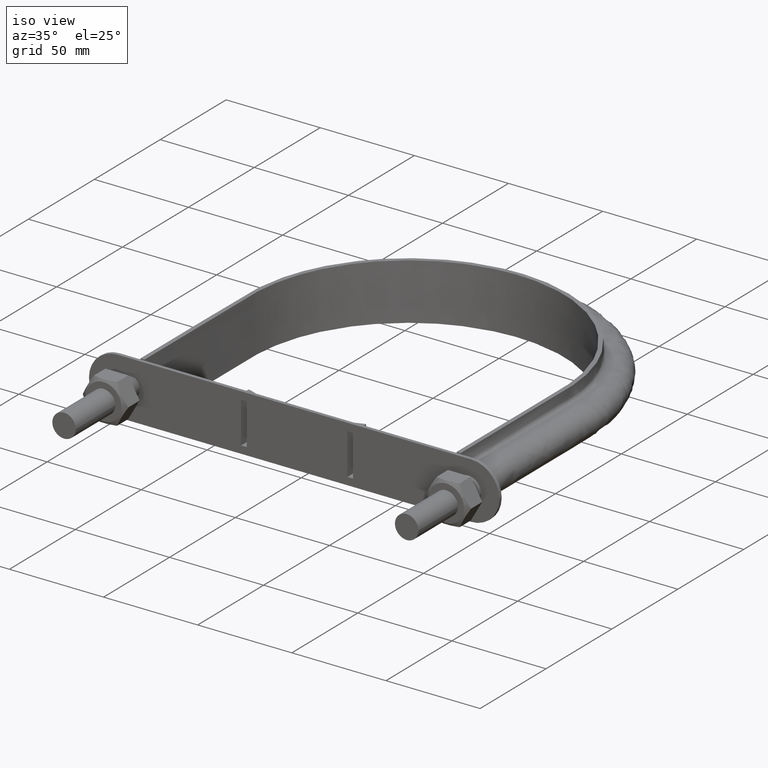
[diagram: clean part render]
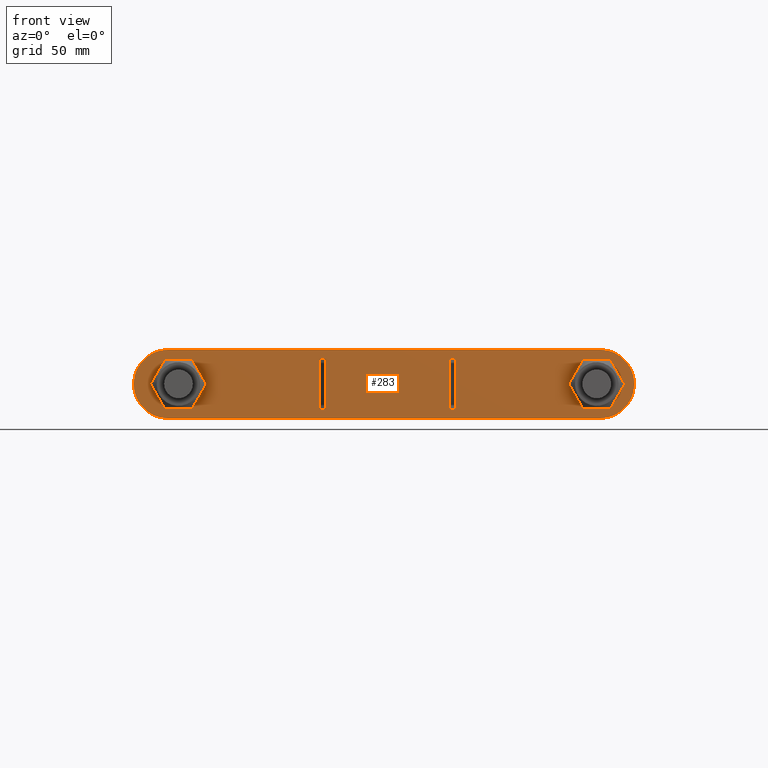
[diagram: tour spotlight — one face highlighted and labeled with its STEP entity id]
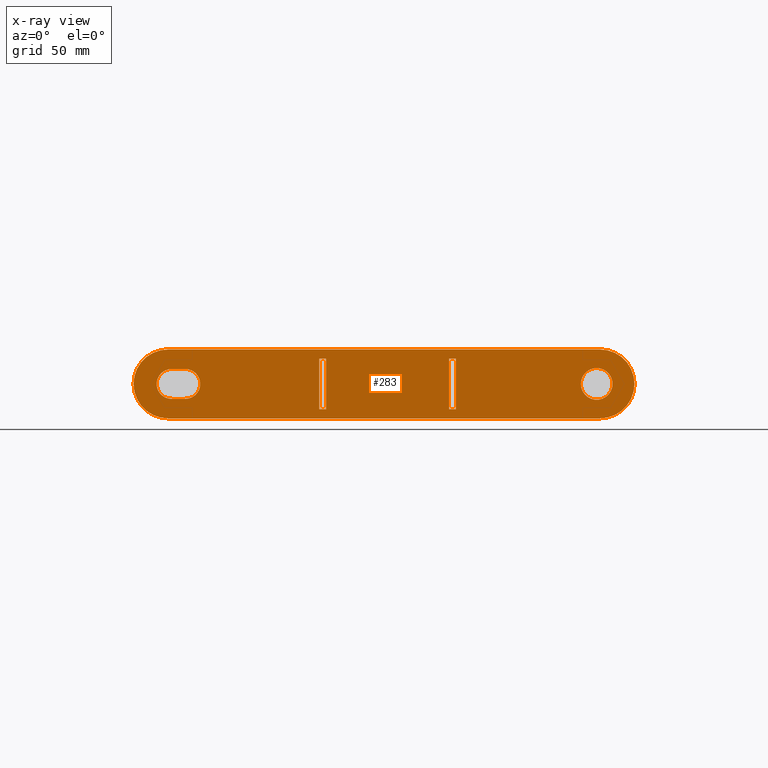
[diagram: x-ray of the same camera — body ghosted, this tour face saturated]
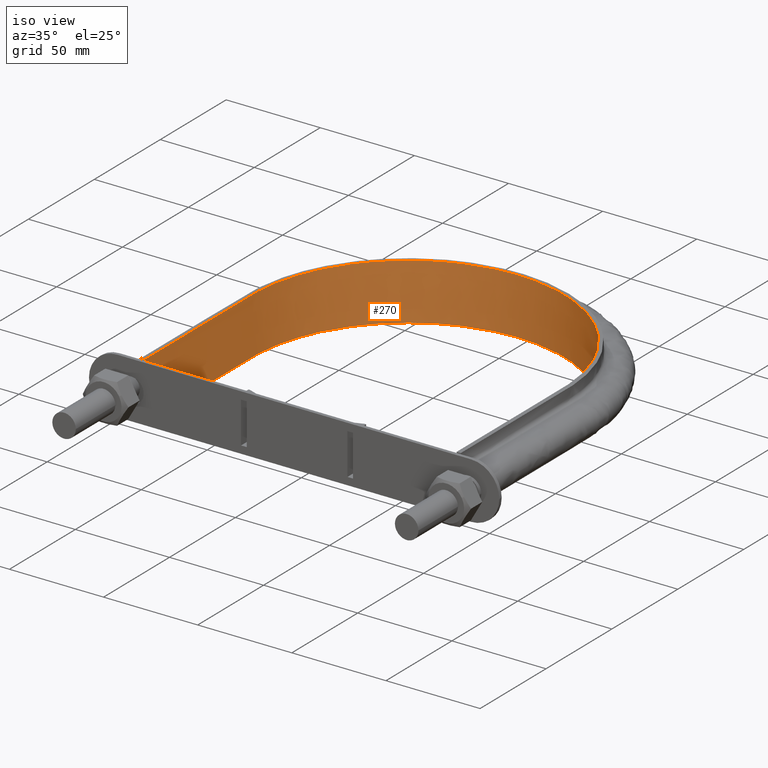
[diagram: tour spotlight — one face highlighted and labeled with its STEP entity id]
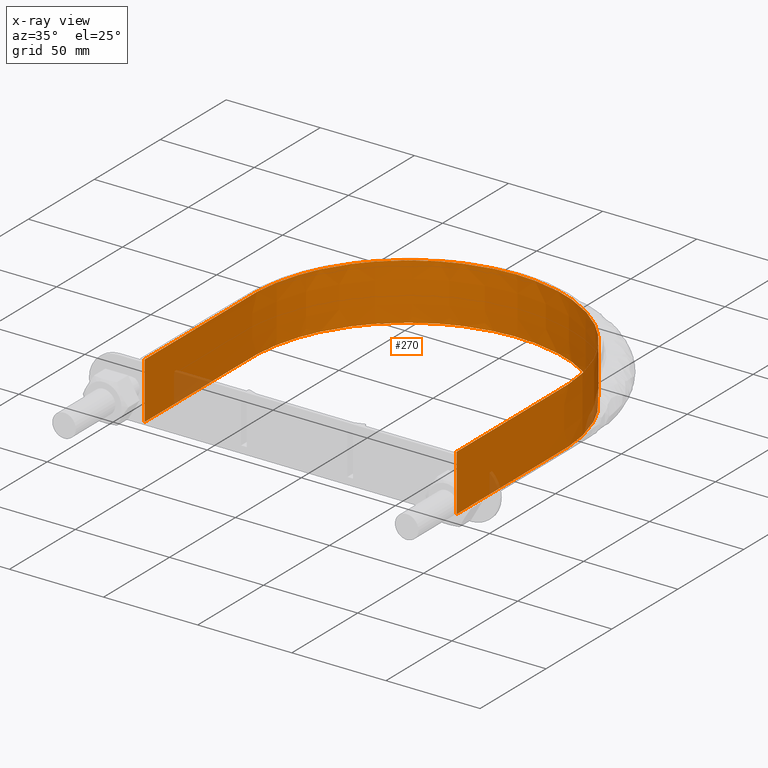
[diagram: x-ray of the same camera — body ghosted, this tour face saturated]
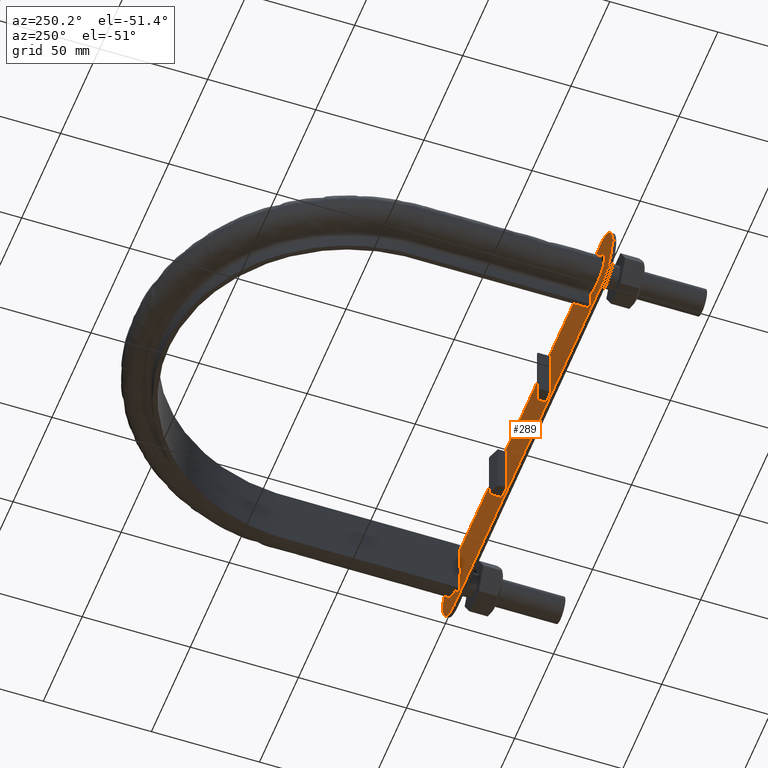
[diagram: tour spotlight — one face highlighted and labeled with its STEP entity id]
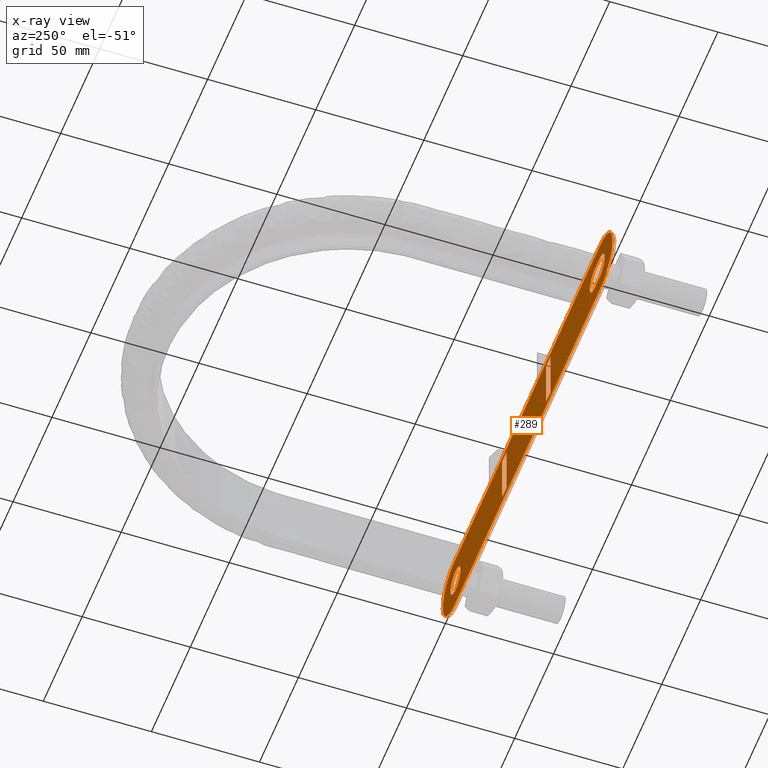
[diagram: x-ray of the same camera — body ghosted, this tour face saturated]
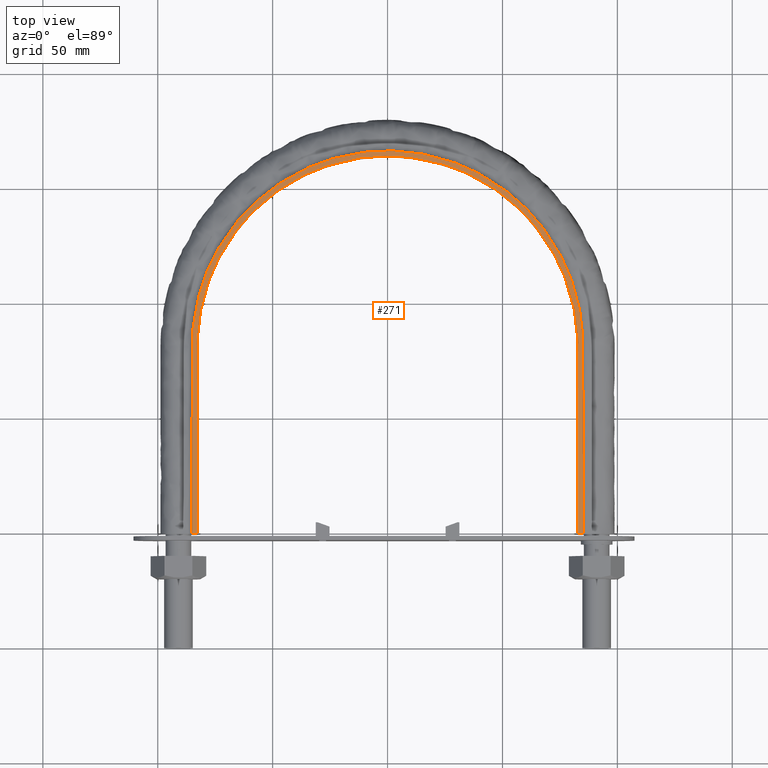
[diagram: tour spotlight — one face highlighted and labeled with its STEP entity id]
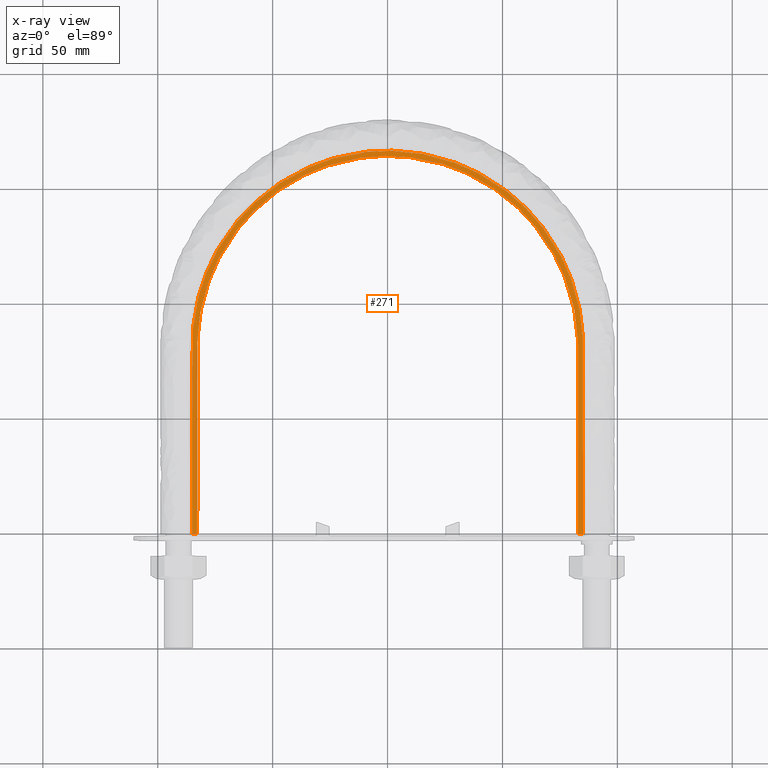
[diagram: x-ray of the same camera — body ghosted, this tour face saturated]
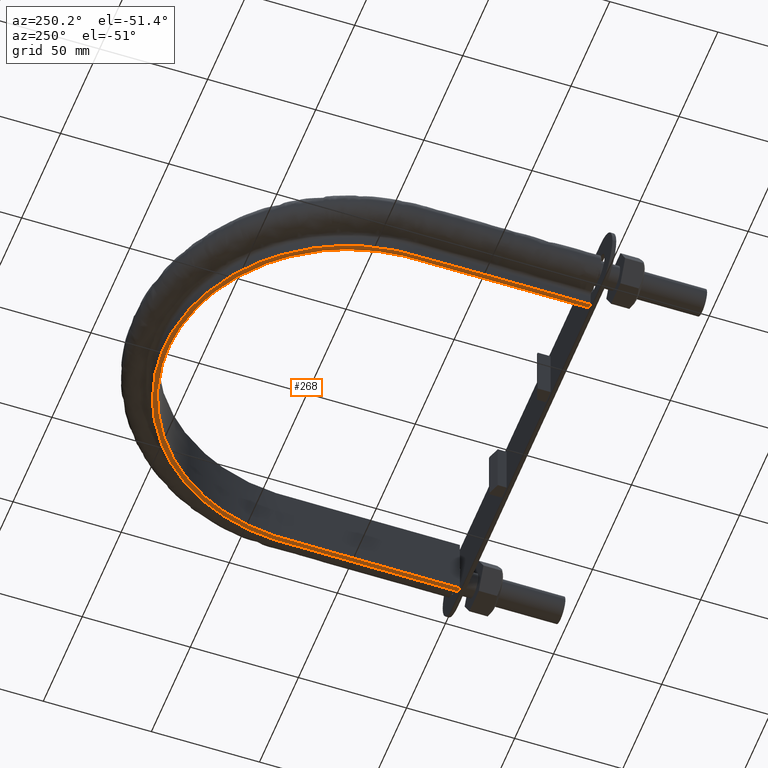
[diagram: tour spotlight — one face highlighted and labeled with its STEP entity id]
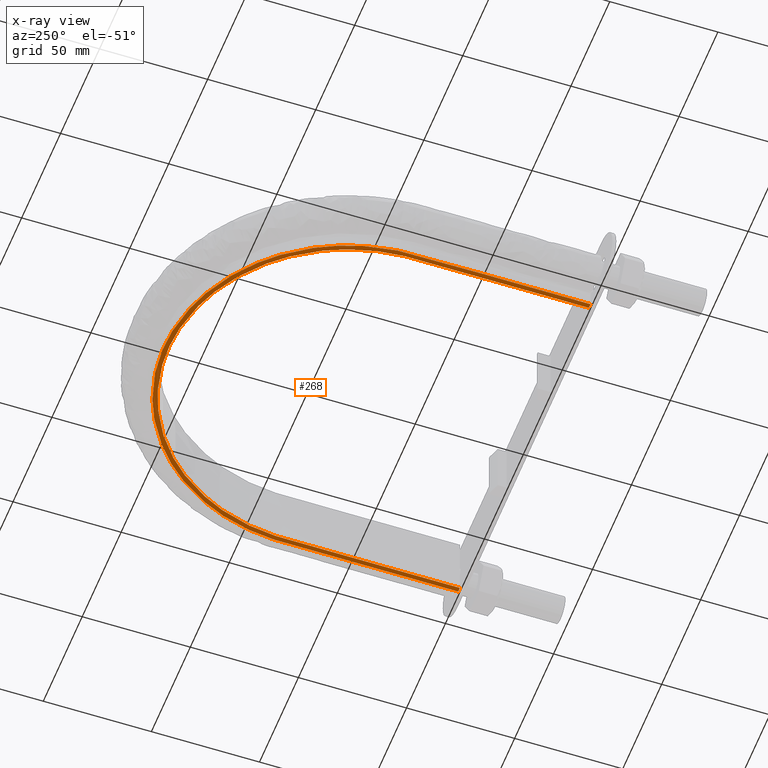
[diagram: x-ray of the same camera — body ghosted, this tour face saturated]
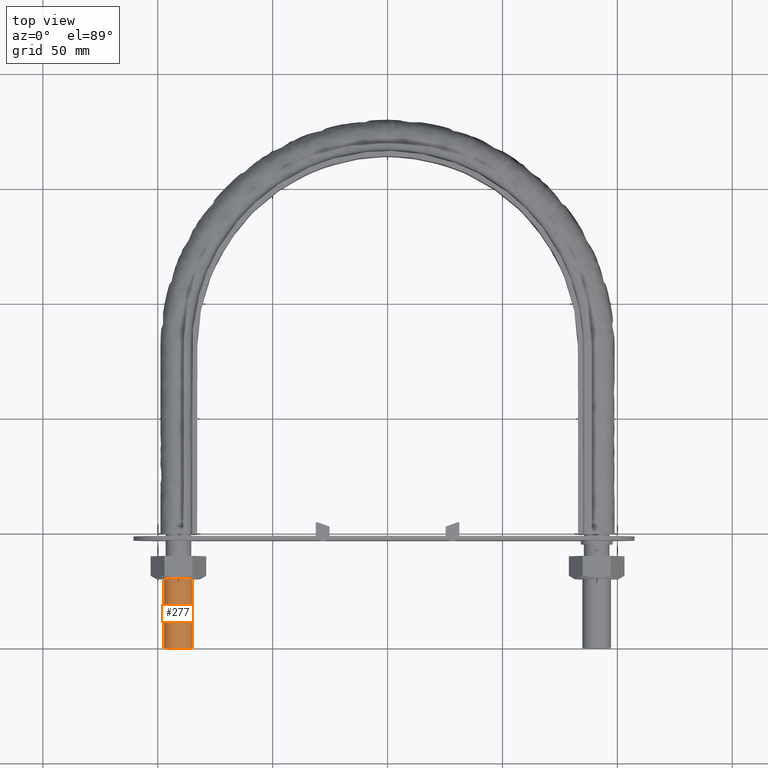
[diagram: tour spotlight — one face highlighted and labeled with its STEP entity id]
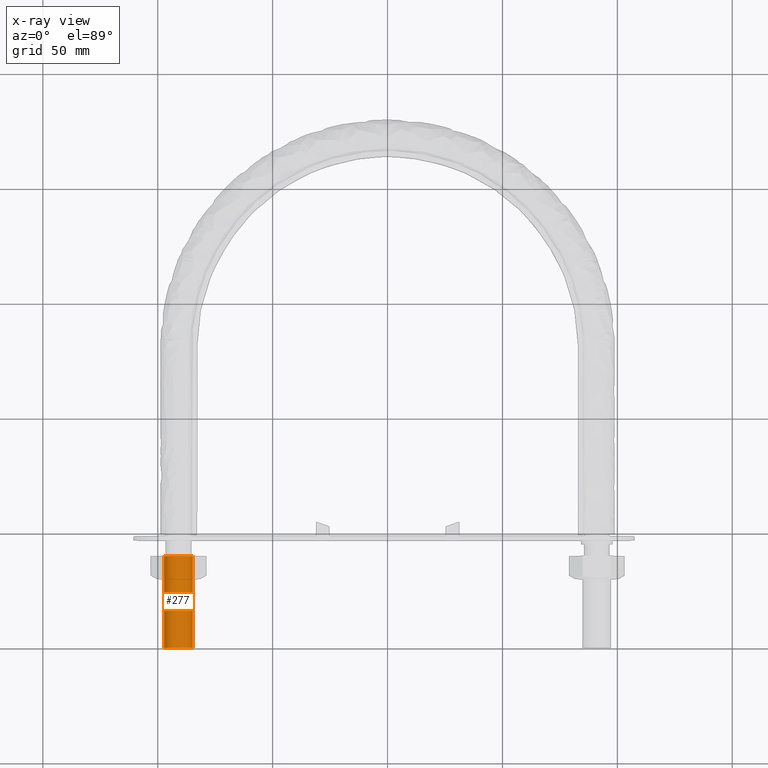
[diagram: x-ray of the same camera — body ghosted, this tour face saturated]
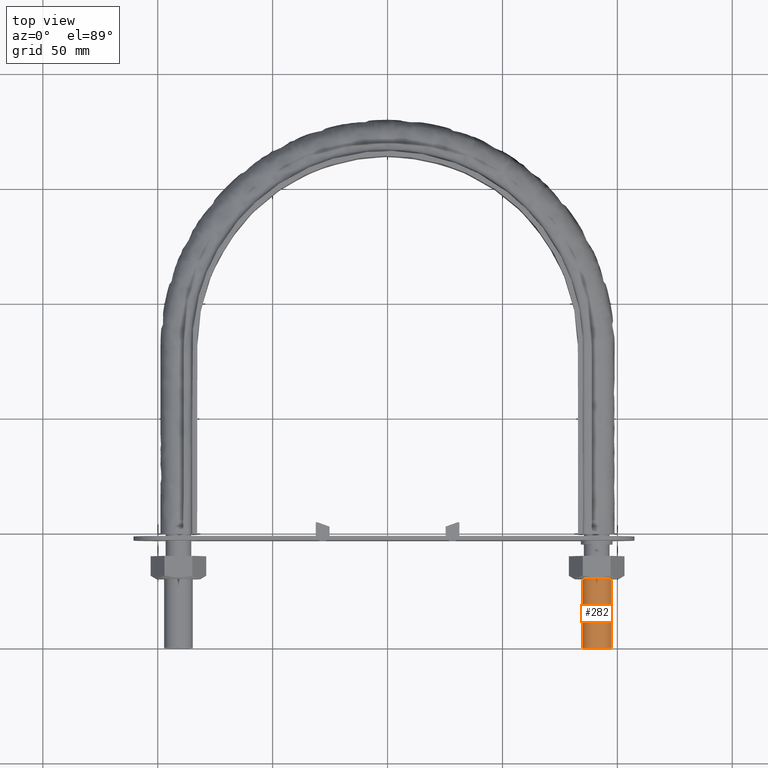
[diagram: tour spotlight — one face highlighted and labeled with its STEP entity id]
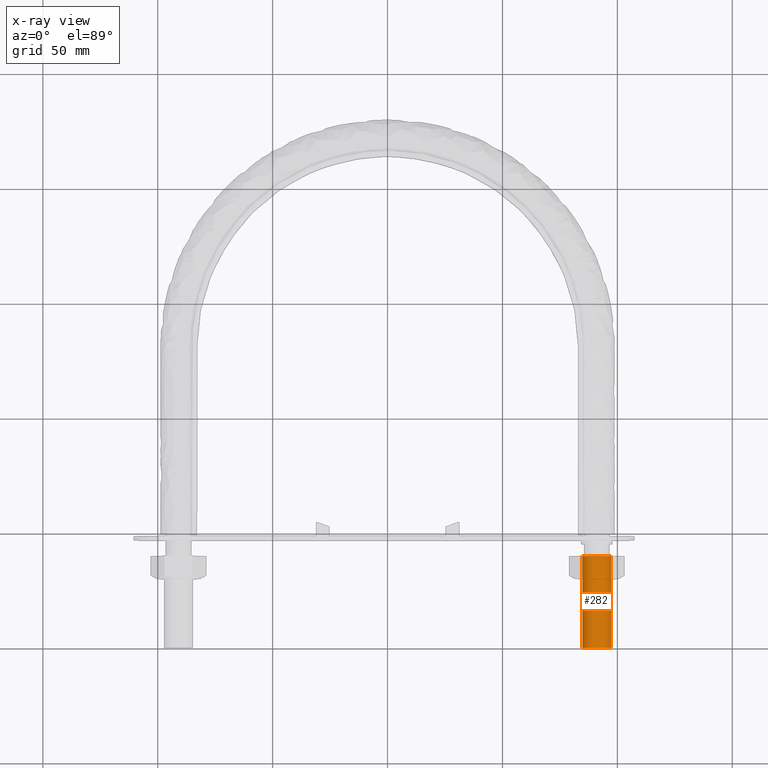
[diagram: x-ray of the same camera — body ghosted, this tour face saturated]
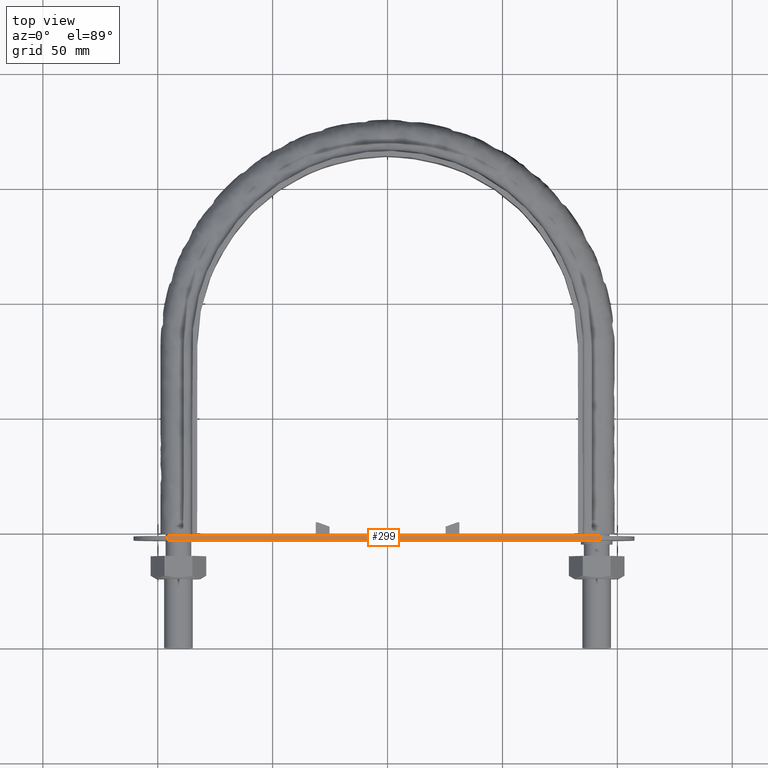
[diagram: tour spotlight — one face highlighted and labeled with its STEP entity id]
A machine part: a face-by-face anatomy tour. The part has 77 B-rep faces; the first image is the clean iso view, then the 8 largest visible faces are spotlighted one at a time (largest first), each with its STEP entity span.

Face 1 — front view, entity #283. An x-ray twin of the same camera follows (body ghosted, this face saturated) — the face is partly hidden behind the body. In plain terms, the highlighted planar face has unit normal (0, 1, 0).
Definition (entity closure, byte-faithful):
#283 = ADVANCED_FACE( '', ( #387, #388, #389, #390, #391 ), #392, .F. );
#387 = FACE_BOUND( '', #1473, .T. );
#388 = FACE_OUTER_BOUND( '', #1474, .T. );
#389 = FACE_BOUND( '', #1475, .T. );
#390 = FACE_BOUND( '', #1476, .T. );
#391 = FACE_BOUND( '', #1477, .T. );
#392 = PLANE( '', #1478 );
#1473 = EDGE_LOOP( '', ( #1744, #1745, #1746, #1747 ) );
#1474 = EDGE_LOOP( '', ( #1748, #1749, #1750, #1751, #1752, #1753 ) );
#1475 = EDGE_LOOP( '', ( #1754 ) );
#1476 = EDGE_LOOP( '', ( #1755, #1756, #1757, #1758 ) );
#1477 = EDGE_LOOP( '', ( #1759, #1760, #1761, #1762 ) );
#1478 = AXIS2_PLACEMENT_3D( '', #1763, #1764, #1765 );
#1744 = ORIENTED_EDGE( '', *, *, #2231, .F. );
#1745 = ORIENTED_EDGE( '', *, *, #2232, .T. );
#1746 = ORIENTED_EDGE( '', *, *, #2233, .T. );
#1747 = ORIENTED_EDGE( '', *, *, #2234, .F. );
#1748 = ORIENTED_EDGE( '', *, *, #2235, .F. );
#1749 = ORIENTED_EDGE( '', *, *, #2236, .F. );
#1750 = ORIENTED_EDGE( '', *, *, #2237, .F. );
#1751 = ORIENTED_EDGE( '', *, *, #2238, .F. );
#1752 = ORIENTED_EDGE( '', *, *, #2239, .F. );
#1753 = ORIENTED_EDGE( '', *, *, #2240, .F. );
#1754 = ORIENTED_EDGE( '', *, *, #2241, .T. );
#1755 = ORIENTED_EDGE( '', *, *, #2242, .F. );
#1756 = ORIENTED_EDGE( '', *, *, #2243, .F. );
#1757 = ORIENTED_EDGE( '', *, *, #2244, .F. );
#1758 = ORIENTED_EDGE( '', *, *, #2245, .F. );
#1759 = ORIENTED_EDGE( '', *, *, #2246, .T. );
#1760 = ORIENTED_EDGE( '', *, *, #2247, .T. );
#1761 = ORIENTED_EDGE( '', *, *, #2248, .F. );
#1762 = ORIENTED_EDGE( '', *, *, #2249, .F. );
#1763 = CARTESIAN_POINT( '', ( -95.5500000000000, 46.8000000000003, 7.48946739754173E-010 ) );
#1764 = DIRECTION( '', ( 2.44484870126044E-016, 1.00000000000000, 5.38325119430397E-017 ) );
#1765 = DIRECTION( '', ( 7.83837578177664E-012, -5.38325119449561E-017, 1.00000000000000 ) );
#2231 = EDGE_CURVE( '', #2433, #2434, #2435, .T. );
#2232 = EDGE_CURVE( '', #2433, #2436, #2437, .T. );
#2233 = EDGE_CURVE( '', #2436, #2438, #2439, .T. );
#2234 = EDGE_CURVE( '', #2434, #2438, #2440, .T. );
#2235 = EDGE_CURVE( '', #2441, #2442, #2443, .T. );
#2236 = EDGE_CURVE( '', #2444, #2441, #2445, .T. );
#2237 = EDGE_CURVE( '', #2446, #2444, #2447, .T. );
#2238 = EDGE_CURVE( '', #2448, #2446, #2449, .T. );
#2239 = EDGE_CURVE( '', #2450, #2448, #2451, .T. );
#2240 = EDGE_CURVE( '', #2442, #2450, #2452, .T. );
#2241 = EDGE_CURVE( '', #2453, #2453, #2454, .T. );
#2242 = EDGE_CURVE( '', #2455, #2456, #2457, .T. );
#2243 = EDGE_CURVE( '', #2458, #2455, #2459, .T. );
#2244 = EDGE_CURVE( '', #2460, #2458, #2461, .T. );
#2245 = EDGE_CURVE( '', #2456, #2460, #2462, .T. );
#2246 = EDGE_CURVE( '', #2463, #2464, #2465, .T. );
#2247 = EDGE_CURVE( '', #2464, #2466, #2467, .T. );
#2248 = EDGE_CURVE( '', #2468, #2466, #2469, .T. );
#2249 = EDGE_CURVE( '', #2463, #2468, #2470, .T. );
#2433 = VERTEX_POINT( '', #2927 );
#2434 = VERTEX_POINT( '', #2928 );
#2435 = LINE( '', #2929, #2930 );
#2436 = VERTEX_POINT( '', #2931 );
#2437 = LINE( '', #2932, #2933 );
#2438 = VERTEX_POINT( '', #2934 );
#2439 = LINE( '', #2935, #2936 );
#2440 = LINE( '', #2937, #2938 );
#2441 = VERTEX_POINT( '', #2939 );
#2442 = VERTEX_POINT( '', #2940 );
#2443 = CIRCLE( '', #2941, 15.0000000000000 );
#2444 = VERTEX_POINT( '', #2942 );
#2445 = CIRCLE( '', #2943, 15.0000000000000 );
#2446 = VERTEX_POINT( '', #2944 );
#2447 = LINE( '', #2945, #2946 );
#2448 = VERTEX_POINT( '', #2947 );
#2449 = CIRCLE( '', #2948, 15.0000000000000 );
#2450 = VERTEX_POINT( '', #2949 );
#2451 = CIRCLE( '', #2950, 15.0000000000000 );
#2452 = LINE( '', #2951, #2952 );
#2453 = VERTEX_POINT( '', #2953 );
#2454 = CIRCLE( '', #2954, 6.90000000000000 );
#2455 = VERTEX_POINT( '', #2955 );
#2456 = VERTEX_POINT( '', #2956 );
#2457 = CIRCLE( '', #2957, 6.50000000000000 );
#2458 = VERTEX_POINT( '', #2958 );
#2459 = LINE( '', #2959, #2960 );
#2460 = VERTEX_POINT( '', #2961 );
#2461 = CIRCLE( '', #2962, 6.50000000000000 );
#2462 = LINE( '', #2963, #2964 );
#2463 = VERTEX_POINT( '', #2965 );
#2464 = VERTEX_POINT( '', #2966 );
#2465 = LINE( '', #2967, #2968 );
#2466 = VERTEX_POINT( '', #2969 );
#2467 = LINE( '', #2970, #2971 );
#2468 = VERTEX_POINT( '', #2972 );
#2469 = LINE( '', #2973, #2974 );
#2470 = LINE( '', #2975, #2976 );
#2927 = CARTESIAN_POINT( '', ( -29.7500000000862, 46.8000000000003, -10.9999999997668 ) );
#2928 = CARTESIAN_POINT( '', ( -26.7500000000862, 46.8000000000003, -10.9999999997903 ) );
#2929 = CARTESIAN_POINT( '', ( -29.7500000000862, 46.8000000000003, -10.9999999997668 ) );
#2930 = VECTOR( '', #3407, 1000.00000000000 );
#2931 = CARTESIAN_POINT( '', ( -29.7499999999138, 46.8000000000003, 11.0000000002332 ) );
#2932 = CARTESIAN_POINT( '', ( -29.7500000000862, 46.8000000000003, -10.9999999997668 ) );
#2933 = VECTOR( '', #3408, 1000.00000000000 );
#2934 = CARTESIAN_POINT( '', ( -26.7499999999138, 46.8000000000003, 11.0000000002097 ) );
#2935 = CARTESIAN_POINT( '', ( -29.7499999999138, 46.8000000000003, 11.0000000002332 ) );
#2936 = VECTOR( '', #3409, 1000.00000000000 );
#2937 = CARTESIAN_POINT( '', ( -26.7500000000862, 46.8000000000003, -10.9999999997903 ) );
#2938 = VECTOR( '', #3410, 1000.00000000000 );
#2939 = CARTESIAN_POINT( '', ( -110.550000000000, 46.8000000000003, 8.66537988992106E-010 ) );
#2940 = CARTESIAN_POINT( '', ( -95.5499999998825, 46.8000000000003, 15.0000000007489 ) );
#2941 = AXIS2_PLACEMENT_3D( '', #3411, #3412, #3413 );
#2942 = CARTESIAN_POINT( '', ( -95.5500000001176, 46.8000000000003, -14.9999999992510 ) );
#2943 = AXIS2_PLACEMENT_3D( '', #3414, #3415, #3416 );
#2944 = CARTESIAN_POINT( '', ( 92.4499999998824, 46.8000000000003, -15.0000000007246 ) );
#2945 = CARTESIAN_POINT( '', ( 92.4499999998824, 46.8000000000003, -15.0000000007247 ) );
#2946 = VECTOR( '', #3417, 1000.00000000000 );
#2947 = CARTESIAN_POINT( '', ( 107.450000000000, 46.8000000000003, -8.42241809223009E-010 ) );
#2948 = AXIS2_PLACEMENT_3D( '', #3418, #3419, #3420 );
#2949 = CARTESIAN_POINT( '', ( 92.4500000001176, 46.8000000000003, 14.9999999992753 ) );
#2950 = AXIS2_PLACEMENT_3D( '', #3421, #3422, #3423 );
#2951 = CARTESIAN_POINT( '', ( -95.5499999998825, 46.8000000000003, 15.0000000007489 ) );
#2952 = VECTOR( '', #3424, 1000.00000000000 );
#2953 = CARTESIAN_POINT( '', ( 97.9000000000000, 46.8000000000003, -7.67385320507042E-010 ) );
#2954 = AXIS2_PLACEMENT_3D( '', #3425, #3426, #3427 );
#2955 = CARTESIAN_POINT( '', ( -93.9999999999491, 46.7999982000074, 6.50000000073679 ) );
#2956 = CARTESIAN_POINT( '', ( -94.0000000000510, 46.7999982000074, -6.49999999926320 ) );
#2957 = AXIS2_PLACEMENT_3D( '', #3428, #3429, #3430 );
#2958 = CARTESIAN_POINT( '', ( -87.9999999999491, 46.7999982000074, 6.50000000068976 ) );
#2959 = CARTESIAN_POINT( '', ( -87.9999999999491, 46.7999982000074, 6.50000000068976 ) );
#2960 = VECTOR( '', #3431, 1000.00000000000 );
#2961 = CARTESIAN_POINT( '', ( -88.0000000000510, 46.7999982000074, -6.49999999931023 ) );
#2962 = AXIS2_PLACEMENT_3D( '', #3432, #3433, #3434 );
#2963 = CARTESIAN_POINT( '', ( -94.0000000000510, 46.7999982000074, -6.49999999926320 ) );
#2964 = VECTOR( '', #3435, 1000.00000000000 );
#2965 = CARTESIAN_POINT( '', ( 29.7499999999137, 46.8000000000003, -11.0000000002332 ) );
#2966 = CARTESIAN_POINT( '', ( 26.7499999999137, 46.8000000000003, -11.0000000002097 ) );
#2967 = CARTESIAN_POINT( '', ( 29.7499999999137, 46.8000000000003, -11.0000000002332 ) );
#2968 = VECTOR( '', #3436, 1000.00000000000 );
#2969 = CARTESIAN_POINT( '', ( 26.7500000000862, 46.8000000000003, 10.9999999997903 ) );
#2970 = CARTESIAN_POINT( '', ( 26.7499999999137, 46.8000000000003, -11.0000000002097 ) );
#2971 = VECTOR( '', #3437, 1000.00000000000 );
#2972 = CARTESIAN_POINT( '', ( 29.7500000000862, 46.8000000000003, 10.9999999997668 ) );
#2973 = CARTESIAN_POINT( '', ( 29.7500000000862, 46.8000000000003, 10.9999999997668 ) );
#2974 = VECTOR( '', #3438, 1000.00000000000 );
#2975 = CARTESIAN_POINT( '', ( 29.7499999999137, 46.8000000000003, -11.0000000002332 ) );
#2976 = VECTOR( '', #3439, 1000.00000000000 );
#3407 = DIRECTION( '', ( 1.00000000000000, -3.05922993233134E-016, -7.83837578177664E-012 ) );
#3408 = DIRECTION( '', ( 7.83811591570821E-012, 1.06919704269028E-016, 1.00000000000000 ) );
#3409 = DIRECTION( '', ( 1.00000000000000, -3.05922993233134E-016, -7.83837578177664E-012 ) );
#3410 = DIRECTION( '', ( 7.83811591570821E-012, 1.06919704269028E-016, 1.00000000000000 ) );
#3411 = CARTESIAN_POINT( '', ( -95.5500000000000, 46.8000000000003, 7.48946739754173E-010 ) );
#3412 = DIRECTION( '', ( 2.44484870126044E-016, 1.00000000000000, 5.38325119430397E-017 ) );
#3413 = DIRECTION( '', ( -1.00000000000000, 2.44484870125622E-016, 7.83837578177664E-012 ) );
#3414 = CARTESIAN_POINT( '', ( -95.5500000000001, 46.8000000000003, 7.48964086988933E-010 ) );
#3415 = DIRECTION( '', ( 2.44484870126044E-016, 1.00000000000000, 5.38325119430397E-017 ) );
#3416 = DIRECTION( '', ( -7.83837578177664E-012, 5.38325119449561E-017, -1.00000000000000 ) );
#3417 = DIRECTION( '', ( -1.00000000000000, 2.44484870125622E-016, 7.83837578177664E-012 ) );
#3418 = CARTESIAN_POINT( '', ( 92.4500000000000, 46.8000000000003, -7.24650559985076E-010 ) );
#3419 = DIRECTION( '', ( 2.44484870126044E-016, 1.00000000000000, 5.38325119430397E-017 ) );
#3420 = DIRECTION( '', ( 1.00000000000000, -2.44484870125622E-016, -7.83837578177664E-012 ) );
#3421 = CARTESIAN_POINT( '', ( 92.4500000000000, 46.8000000000003, -7.24667907219836E-010 ) );
#3422 = DIRECTION( '', ( 2.44484870126044E-016, 1.00000000000000, 5.38325119430397E-017 ) );
#3423 = DIRECTION( '', ( 7.83837578177664E-012, -5.38325119449561E-017, 1.00000000000000 ) );
#3424 = DIRECTION( '', ( 1.00000000000000, -2.44484870125622E-016, -7.83837578177664E-012 ) );
#3425 = CARTESIAN_POINT( '', ( 91.0000000000000, 46.8000000000003, -7.13300527612784E-010 ) );
#3426 = DIRECTION( '', ( 2.44484870126044E-016, 1.00000000000000, 5.38325119430397E-017 ) );
#3427 = DIRECTION( '', ( 1.00000000000000, -2.44484870125622E-016, -7.83837578177664E-012 ) );
#3428 = CARTESIAN_POINT( '', ( -94.0000000000000, 46.7999982000074, 7.36795522568846E-010 ) );
#3429 = DIRECTION( '', ( -2.44484870126044E-016, -1.00000000000000, -5.38325119430397E-017 ) );
#3430 = DIRECTION( '', ( 7.83837578177664E-012, -5.38325119449561E-017, 1.00000000000000 ) );
#3431 = DIRECTION( '', ( -1.00000000000000, 2.44484870125622E-016, 7.83837578177664E-012 ) );
#3432 = CARTESIAN_POINT( '', ( -88.0000000000001, 46.7999982000074, 6.89765267878187E-010 ) );
#3433 = DIRECTION( '', ( -2.44484870126044E-016, -1.00000000000000, -5.38325119430397E-017 ) );
#3434 = DIRECTION( '', ( -7.83837578177664E-012, 5.38325119449561E-017, -1.00000000000000 ) );
#3435 = DIRECTION( '', ( 1.00000000000000, -2.44484870125622E-016, -7.83837578177664E-012 ) );
#3436 = DIRECTION( '', ( -1.00000000000000, 3.05507382400347E-016, 7.83837578177664E-012 ) );
#3437 = DIRECTION( '', ( 7.83863564784507E-012, 1.06919704269028E-016, 1.00000000000000 ) );
#3438 = DIRECTION( '', ( -1.00000000000000, 3.05507382400347E-016, 7.83837578177664E-012 ) );
#3439 = DIRECTION( '', ( 7.83863564784507E-012, 1.06919704269028E-016, 1.00000000000000 ) );

Face 2 — iso view, entity #270. An x-ray twin of the same camera follows (body ghosted, this face saturated) — the face is partly hidden behind the body. In plain terms, the highlighted face is a SurfaceOfExtrusion surface.
Definition (entity closure, byte-faithful):
#270 = ADVANCED_FACE( '', ( #353 ), #354, .T. );
#353 = FACE_OUTER_BOUND( '', #540, .T. );
#354 = SURFACE_OF_LINEAR_EXTRUSION( '', #541, #542 );
#540 = EDGE_LOOP( '', ( #1641, #1642, #1643, #1644 ) );
#541 = B_SPLINE_CURVE_WITH_KNOTS( '', 3, ( #1645, #1646, #1647, #1648, #1649, #1650, #1651, #1652, #1653, #1654, #1655, #1656, #1657, #1658, #1659, #1660, #1661 ), .UNSPECIFIED., .F., .F., ( 4, 3, 1, 1, 1, 1, 1, 1, 1, 3, 4 ), ( -10.0000000000000, -9.00000000000000, -8.00000000000000, -7.00000000000000, -6.00000000000000, -5.00000000000000, -4.00000000000000, -3.00000000000000, -2.00000000000000, -1.00000000000000, 0.000000000000000 ), .UNSPECIFIED. );
#542 = VECTOR( '', #1662, 1000.00000000000 );
#1641 = ORIENTED_EDGE( '', *, *, #2207, .F. );
#1642 = ORIENTED_EDGE( '', *, *, #2196, .F. );
#1643 = ORIENTED_EDGE( '', *, *, #2200, .T. );
#1644 = ORIENTED_EDGE( '', *, *, #2204, .T. );
#1645 = CARTESIAN_POINT( '', ( -82.8500000000000, 49.5000000000001, -278.469308654335 ) );
#1646 = CARTESIAN_POINT( '', ( -82.8500000000000, 76.7166666666667, -278.469308654335 ) );
#1647 = CARTESIAN_POINT( '', ( -82.8500000000000, 103.933333333333, -278.469308654335 ) );
#1648 = CARTESIAN_POINT( '', ( -82.8500000000000, 131.150000000000, -278.469308654335 ) );
#1649 = CARTESIAN_POINT( '', ( -82.8500000000000, 141.979512005492, -278.469308654335 ) );
#1650 = CARTESIAN_POINT( '', ( -78.5361555605724, 163.687272457852, -278.469308654335 ) );
#1651 = CARTESIAN_POINT( '', ( -60.1089711493570, 191.257212617967, -278.469308654335 ) );
#1652 = CARTESIAN_POINT( '', ( -32.5307407698323, 209.686657998112, -278.469308654335 ) );
#1653 = CARTESIAN_POINT( '', ( 5.42262588885138E-014, 216.156671000944, -278.469308654335 ) );
#1654 = CARTESIAN_POINT( '', ( 32.5307407698323, 209.686657998112, -278.469308654335 ) );
#1655 = CARTESIAN_POINT( '', ( 60.1089711493571, 191.257212617967, -278.469308654335 ) );
#1656 = CARTESIAN_POINT( '', ( 78.5361555605725, 163.687272457852, -278.469308654335 ) );
#1657 = CARTESIAN_POINT( '', ( 82.8500000000000, 141.979512005492, -278.469308654335 ) );
#1658 = CARTESIAN_POINT( '', ( 82.8500000000000, 131.150000000000, -278.469308654335 ) );
#1659 = CARTESIAN_POINT( '', ( 82.8500000000000, 103.933333333333, -278.469308654335 ) );
#1660 = CARTESIAN_POINT( '', ( 82.8500000000000, 76.7166666666667, -278.469308654335 ) );
#1661 = CARTESIAN_POINT( '', ( 82.8500000000000, 49.5000000000000, -278.469308654335 ) );
#1662 = DIRECTION( '', ( 0.000000000000000, 0.000000000000000, 1.00000000000000 ) );
#2196 = EDGE_CURVE( '', #2367, #2368, #2369, .T. );
#2200 = EDGE_CURVE( '', #2367, #2375, #2376, .T. );
#2204 = EDGE_CURVE( '', #2375, #2382, #2383, .T. );
#2207 = EDGE_CURVE( '', #2368, #2382, #2387, .T. );
#2367 = VERTEX_POINT( '', #2673 );
#2368 = VERTEX_POINT( '', #2674 );
#2369 = LINE( '', #2675, #2676 );
#2375 = VERTEX_POINT( '', #2714 );
#2376 = B_SPLINE_CURVE_WITH_KNOTS( '', 3, ( #2715, #2716, #2717, #2718, #2719, #2720, #2721, #2722, #2723, #2724, #2725, #2726, #2727, #2728, #2729, #2730, #2731 ), .UNSPECIFIED., .F., .F., ( 4, 3, 1, 1, 1, 1, 1, 1, 1, 3, 4 ), ( -10.0000000000000, -9.00000000000000, -8.00000000000000, -7.00000000000000, -6.00000000000000, -5.00000000000000, -4.00000000000000, -3.00000000000000, -2.00000000000000, -1.00000000000000, 0.000000000000000 ), .UNSPECIFIED. );
#2382 = VERTEX_POINT( '', #2764 );
#2383 = LINE( '', #2765, #2766 );
#2387 = B_SPLINE_CURVE_WITH_KNOTS( '', 3, ( #2801, #2802, #2803, #2804, #2805, #2806, #2807, #2808, #2809, #2810, #2811, #2812, #2813, #2814, #2815, #2816, #2817 ), .UNSPECIFIED., .F., .F., ( 4, 3, 1, 1, 1, 1, 1, 1, 1, 3, 4 ), ( -10.0000000000000, -9.00000000000000, -8.00000000000000, -7.00000000000000, -6.00000000000000, -5.00000000000000, -4.00000000000000, -3.00000000000000, -2.00000000000000, -1.00000000000000, 0.000000000000000 ), .UNSPECIFIED. );
#2673 = CARTESIAN_POINT( '', ( -82.8499999999999, 49.5000000000003, -15.0000000000000 ) );
#2674 = CARTESIAN_POINT( '', ( -82.8499999999999, 49.5000000000003, 15.0000000000000 ) );
#2675 = CARTESIAN_POINT( '', ( -82.8500000000000, 49.5000000000001, -278.469308654335 ) );
#2676 = VECTOR( '', #3383, 1000.00000000000 );
#2714 = CARTESIAN_POINT( '', ( 82.8500000000000, 49.5000000000000, -15.0000000000000 ) );
#2715 = CARTESIAN_POINT( '', ( -82.8500000000000, 49.5000000000001, -15.0000000000000 ) );
#2716 = CARTESIAN_POINT( '', ( -82.8500000000000, 76.7166666666667, -15.0000000000000 ) );
#2717 = CARTESIAN_POINT( '', ( -82.8500000000000, 103.933333333333, -15.0000000000000 ) );
#2718 = CARTESIAN_POINT( '', ( -82.8500000000000, 131.150000000000, -15.0000000000000 ) );
#2719 = CARTESIAN_POINT( '', ( -82.8500000000000, 141.979512005492, -15.0000000000000 ) );
#2720 = CARTESIAN_POINT( '', ( -78.5361555605724, 163.687272457852, -15.0000000000000 ) );
#2721 = CARTESIAN_POINT( '', ( -60.1089711493570, 191.257212617967, -15.0000000000000 ) );
#2722 = CARTESIAN_POINT( '', ( -32.5307407698323, 209.686657998112, -15.0000000000000 ) );
#2723 = CARTESIAN_POINT( '', ( 5.42262588885138E-014, 216.156671000944, -15.0000000000000 ) );
#2724 = CARTESIAN_POINT( '', ( 32.5307407698323, 209.686657998112, -15.0000000000000 ) );
#2725 = CARTESIAN_POINT( '', ( 60.1089711493571, 191.257212617967, -15.0000000000000 ) );
#2726 = CARTESIAN_POINT( '', ( 78.5361555605725, 163.687272457852, -15.0000000000000 ) );
#2727 = CARTESIAN_POINT( '', ( 82.8500000000000, 141.979512005492, -15.0000000000000 ) );
#2728 = CARTESIAN_POINT( '', ( 82.8500000000000, 131.150000000000, -15.0000000000000 ) );
#2729 = CARTESIAN_POINT( '', ( 82.8500000000000, 103.933333333333, -15.0000000000000 ) );
#2730 = CARTESIAN_POINT( '', ( 82.8500000000000, 76.7166666666667, -15.0000000000000 ) );
#2731 = CARTESIAN_POINT( '', ( 82.8500000000000, 49.5000000000000, -15.0000000000000 ) );
#2764 = CARTESIAN_POINT( '', ( 82.8500000000002, 49.5000000000003, 15.0000000000000 ) );
#2765 = CARTESIAN_POINT( '', ( 82.8500000000000, 49.5000000000000, -278.469308654335 ) );
#2766 = VECTOR( '', #3387, 1000.00000000000 );
#2801 = CARTESIAN_POINT( '', ( -82.8500000000000, 49.5000000000001, 15.0000000000000 ) );
#2802 = CARTESIAN_POINT( '', ( -82.8500000000000, 76.7166666666667, 15.0000000000000 ) );
#2803 = CARTESIAN_POINT( '', ( -82.8500000000000, 103.933333333333, 15.0000000000000 ) );
#2804 = CARTESIAN_POINT( '', ( -82.8500000000000, 131.150000000000, 15.0000000000000 ) );
#2805 = CARTESIAN_POINT( '', ( -82.8500000000000, 141.979512005492, 15.0000000000000 ) );
#2806 = CARTESIAN_POINT( '', ( -78.5361555605724, 163.687272457852, 15.0000000000000 ) );
#2807 = CARTESIAN_POINT( '', ( -60.1089711493570, 191.257212617967, 15.0000000000000 ) );
#2808 = CARTESIAN_POINT( '', ( -32.5307407698323, 209.686657998112, 15.0000000000000 ) );
#2809 = CARTESIAN_POINT( '', ( 5.42262588885138E-014, 216.156671000944, 15.0000000000000 ) );
#2810 = CARTESIAN_POINT( '', ( 32.5307407698323, 209.686657998112, 15.0000000000000 ) );
#2811 = CARTESIAN_POINT( '', ( 60.1089711493571, 191.257212617967, 15.0000000000000 ) );
#2812 = CARTESIAN_POINT( '', ( 78.5361555605725, 163.687272457852, 15.0000000000000 ) );
#2813 = CARTESIAN_POINT( '', ( 82.8500000000000, 141.979512005492, 15.0000000000000 ) );
#2814 = CARTESIAN_POINT( '', ( 82.8500000000000, 131.150000000000, 15.0000000000000 ) );
#2815 = CARTESIAN_POINT( '', ( 82.8500000000000, 103.933333333333, 15.0000000000000 ) );
#2816 = CARTESIAN_POINT( '', ( 82.8500000000000, 76.7166666666667, 15.0000000000000 ) );
#2817 = CARTESIAN_POINT( '', ( 82.8500000000000, 49.5000000000000, 15.0000000000000 ) );
#3383 = DIRECTION( '', ( 0.000000000000000, 0.000000000000000, 1.00000000000000 ) );
#3387 = DIRECTION( '', ( 0.000000000000000, 0.000000000000000, 1.00000000000000 ) );

Face 3 — auxiliary view, entity #289. An x-ray twin of the same camera follows (body ghosted, this face saturated) — the face is partly hidden behind the body. In plain terms, the highlighted planar face has unit normal (0, 1, 0).
Definition (entity closure, byte-faithful):
#289 = ADVANCED_FACE( '', ( #403, #404, #405, #406, #407 ), #408, .T. );
#403 = FACE_BOUND( '', #1489, .T. );
#404 = FACE_OUTER_BOUND( '', #1490, .T. );
#405 = FACE_BOUND( '', #1491, .T. );
#406 = FACE_BOUND( '', #1492, .T. );
#407 = FACE_BOUND( '', #1493, .T. );
#408 = PLANE( '', #1494 );
#1489 = EDGE_LOOP( '', ( #1801, #1802, #1803, #1804 ) );
#1490 = EDGE_LOOP( '', ( #1805, #1806, #1807, #1808, #1809, #1810 ) );
#1491 = EDGE_LOOP( '', ( #1811 ) );
#1492 = EDGE_LOOP( '', ( #1812, #1813, #1814, #1815 ) );
#1493 = EDGE_LOOP( '', ( #1816, #1817, #1818, #1819 ) );
#1494 = AXIS2_PLACEMENT_3D( '', #1820, #1821, #1822 );
#1801 = ORIENTED_EDGE( '', *, *, #2263, .T. );
#1802 = ORIENTED_EDGE( '', *, *, #2264, .T. );
#1803 = ORIENTED_EDGE( '', *, *, #2265, .F. );
#1804 = ORIENTED_EDGE( '', *, *, #2266, .F. );
#1805 = ORIENTED_EDGE( '', *, *, #2250, .T. );
#1806 = ORIENTED_EDGE( '', *, *, #2267, .T. );
#1807 = ORIENTED_EDGE( '', *, *, #2268, .T. );
#1808 = ORIENTED_EDGE( '', *, *, #2269, .T. );
#1809 = ORIENTED_EDGE( '', *, *, #2270, .T. );
#1810 = ORIENTED_EDGE( '', *, *, #2271, .T. );
#1811 = ORIENTED_EDGE( '', *, *, #2272, .F. );
#1812 = ORIENTED_EDGE( '', *, *, #2273, .F. );
#1813 = ORIENTED_EDGE( '', *, *, #2260, .F. );
#1814 = ORIENTED_EDGE( '', *, *, #2274, .F. );
#1815 = ORIENTED_EDGE( '', *, *, #2275, .F. );
#1816 = ORIENTED_EDGE( '', *, *, #2276, .F. );
#1817 = ORIENTED_EDGE( '', *, *, #2277, .T. );
#1818 = ORIENTED_EDGE( '', *, *, #2278, .T. );
#1819 = ORIENTED_EDGE( '', *, *, #2279, .F. );
#1820 = CARTESIAN_POINT( '', ( -95.5500000000000, 48.6000000000003, 7.48946836652694E-010 ) );
#1821 = DIRECTION( '', ( 2.44484870126044E-016, 1.00000000000000, 5.38325119430397E-017 ) );
#1822 = DIRECTION( '', ( 7.83837578177664E-012, -5.38325119449561E-017, 1.00000000000000 ) );
#2250 = EDGE_CURVE( '', #2471, #2472, #2473, .T. );
#2260 = EDGE_CURVE( '', #2487, #2488, #2489, .T. );
#2263 = EDGE_CURVE( '', #2492, #2493, #2494, .T. );
#2264 = EDGE_CURVE( '', #2493, #2495, #2496, .T. );
#2265 = EDGE_CURVE( '', #2497, #2495, #2498, .T. );
#2266 = EDGE_CURVE( '', #2492, #2497, #2499, .T. );
#2267 = EDGE_CURVE( '', #2472, #2500, #2501, .T. );
#2268 = EDGE_CURVE( '', #2500, #2502, #2503, .T. );
#2269 = EDGE_CURVE( '', #2502, #2504, #2505, .T. );
#2270 = EDGE_CURVE( '', #2504, #2506, #2507, .T. );
#2271 = EDGE_CURVE( '', #2506, #2471, #2508, .T. );
#2272 = EDGE_CURVE( '', #2509, #2509, #2510, .T. );
#2273 = EDGE_CURVE( '', #2488, #2511, #2512, .F. );
#2274 = EDGE_CURVE( '', #2513, #2487, #2514, .F. );
#2275 = EDGE_CURVE( '', #2511, #2513, #2515, .T. );
#2276 = EDGE_CURVE( '', #2516, #2517, #2518, .T. );
#2277 = EDGE_CURVE( '', #2516, #2519, #2520, .T. );
#2278 = EDGE_CURVE( '', #2519, #2521, #2522, .T. );
#2279 = EDGE_CURVE( '', #2517, #2521, #2523, .T. );
#2471 = VERTEX_POINT( '', #2977 );
#2472 = VERTEX_POINT( '', #2978 );
#2473 = CIRCLE( '', #2979, 15.0000000000000 );
#2487 = VERTEX_POINT( '', #3002 );
#2488 = VERTEX_POINT( '', #3003 );
#2489 = LINE( '', #3004, #3005 );
#2492 = VERTEX_POINT( '', #3010 );
#2493 = VERTEX_POINT( '', #3011 );
#2494 = LINE( '', #3012, #3013 );
#2495 = VERTEX_POINT( '', #3014 );
#2496 = LINE( '', #3015, #3016 );
#2497 = VERTEX_POINT( '', #3017 );
#2498 = LINE( '', #3018, #3019 );
#2499 = LINE( '', #3020, #3021 );
#2500 = VERTEX_POINT( '', #3022 );
#2501 = LINE( '', #3023, #3024 );
#2502 = VERTEX_POINT( '', #3025 );
#2503 = CIRCLE( '', #3026, 15.0000000000000 );
#2504 = VERTEX_POINT( '', #3027 );
#2505 = CIRCLE( '', #3028, 15.0000000000000 );
#2506 = VERTEX_POINT( '', #3029 );
#2507 = LINE( '', #3030, #3031 );
#2508 = CIRCLE( '', #3032, 15.0000000000000 );
#2509 = VERTEX_POINT( '', #3033 );
#2510 = CIRCLE( '', #3034, 6.40000000000000 );
#2511 = VERTEX_POINT( '', #3035 );
#2512 = CIRCLE( '', #3036, 6.50000000000000 );
#2513 = VERTEX_POINT( '', #3037 );
#2514 = CIRCLE( '', #3038, 6.50000000000000 );
#2515 = LINE( '', #3039, #3040 );
#2516 = VERTEX_POINT( '', #3041 );
#2517 = VERTEX_POINT( '', #3042 );
#2518 = LINE( '', #3043, #3044 );
#2519 = VERTEX_POINT( '', #3045 );
#2520 = LINE( '', #3046, #3047 );
#2521 = VERTEX_POINT( '', #3048 );
#2522 = LINE( '', #3049, #3050 );
#2523 = LINE( '', #3051, #3052 );
#2977 = CARTESIAN_POINT( '', ( -110.550000000000, 48.6000000000003, 8.66538085890628E-010 ) );
#2978 = CARTESIAN_POINT( '', ( -95.5499999998825, 48.6000000000003, 15.0000000007489 ) );
#2979 = AXIS2_PLACEMENT_3D( '', #3440, #3441, #3442 );
#3002 = CARTESIAN_POINT( '', ( -88.0000000000510, 48.6000000000003, -6.49999999931023 ) );
#3003 = CARTESIAN_POINT( '', ( -94.0000000000510, 48.6000000000003, -6.49999999926320 ) );
#3004 = CARTESIAN_POINT( '', ( -94.0000000000510, 48.6000000000003, -6.49999999926320 ) );
#3005 = VECTOR( '', #3452, 1000.00000000000 );
#3010 = CARTESIAN_POINT( '', ( -31.2500000000980, 48.6000000000003, -12.4999999997551 ) );
#3011 = CARTESIAN_POINT( '', ( -25.2500000000980, 48.6000000000003, -12.4999999998021 ) );
#3012 = CARTESIAN_POINT( '', ( -31.2500000000980, 48.6000000000003, -12.4999999997551 ) );
#3013 = VECTOR( '', #3455, 1000.00000000000 );
#3014 = CARTESIAN_POINT( '', ( -25.2499999999020, 48.6000000000003, 12.5000000001979 ) );
#3015 = CARTESIAN_POINT( '', ( -25.2500000000980, 48.6000000000003, -12.4999999998021 ) );
#3016 = VECTOR( '', #3456, 1000.00000000000 );
#3017 = CARTESIAN_POINT( '', ( -31.2499999999020, 48.6000000000003, 12.5000000002449 ) );
#3018 = CARTESIAN_POINT( '', ( -31.2499999999020, 48.6000000000003, 12.5000000002449 ) );
#3019 = VECTOR( '', #3457, 1000.00000000000 );
#3020 = CARTESIAN_POINT( '', ( -31.2500000000980, 48.6000000000003, -12.4999999997551 ) );
#3021 = VECTOR( '', #3458, 1000.00000000000 );
#3022 = CARTESIAN_POINT( '', ( 92.4500000001176, 48.6000000000003, 14.9999999992753 ) );
#3023 = CARTESIAN_POINT( '', ( -95.5499999998825, 48.6000000000003, 15.0000000007489 ) );
#3024 = VECTOR( '', #3459, 1000.00000000000 );
#3025 = CARTESIAN_POINT( '', ( 107.450000000000, 48.6000000000003, -8.42241712324488E-010 ) );
#3026 = AXIS2_PLACEMENT_3D( '', #3460, #3461, #3462 );
#3027 = CARTESIAN_POINT( '', ( 92.4499999998824, 48.6000000000003, -15.0000000007246 ) );
#3028 = AXIS2_PLACEMENT_3D( '', #3463, #3464, #3465 );
#3029 = CARTESIAN_POINT( '', ( -95.5500000001176, 48.6000000000003, -14.9999999992510 ) );
#3030 = CARTESIAN_POINT( '', ( 92.4499999998824, 48.6000000000003, -15.0000000007247 ) );
#3031 = VECTOR( '', #3466, 1000.00000000000 );
#3032 = AXIS2_PLACEMENT_3D( '', #3467, #3468, #3469 );
#3033 = CARTESIAN_POINT( '', ( 97.4000000000000, 48.6000100000003, -7.63466035717094E-010 ) );
#3034 = AXIS2_PLACEMENT_3D( '', #3470, #3471, #3472 );
#3035 = CARTESIAN_POINT( '', ( -93.9999999999491, 48.6000000000003, 6.50000000073680 ) );
#3036 = AXIS2_PLACEMENT_3D( '', #3473, #3474, #3475 );
#3037 = CARTESIAN_POINT( '', ( -87.9999999999491, 48.6000000000003, 6.50000000068976 ) );
#3038 = AXIS2_PLACEMENT_3D( '', #3476, #3477, #3478 );
#3039 = CARTESIAN_POINT( '', ( -87.9999999999491, 48.6000000000003, 6.50000000068976 ) );
#3040 = VECTOR( '', #3479, 1000.00000000000 );
#3041 = CARTESIAN_POINT( '', ( 25.2499999999020, 48.6000000000003, -12.5000000001979 ) );
#3042 = CARTESIAN_POINT( '', ( 25.2500000000980, 48.6000000000003, 12.4999999998021 ) );
#3043 = CARTESIAN_POINT( '', ( 25.2499999999020, 48.6000000000003, -12.5000000001979 ) );
#3044 = VECTOR( '', #3480, 1000.00000000000 );
#3045 = CARTESIAN_POINT( '', ( 31.2499999999020, 48.6000000000003, -12.5000000002450 ) );
#3046 = CARTESIAN_POINT( '', ( 25.2499999999020, 48.6000000000003, -12.5000000001979 ) );
#3047 = VECTOR( '', #3481, 1000.00000000000 );
#3048 = CARTESIAN_POINT( '', ( 31.2500000000979, 48.6000000000003, 12.4999999997550 ) );
#3049 = CARTESIAN_POINT( '', ( 31.2499999999020, 48.6000000000003, -12.5000000002450 ) );
#3050 = VECTOR( '', #3482, 1000.00000000000 );
#3051 = CARTESIAN_POINT( '', ( 25.2500000000980, 48.6000000000003, 12.4999999998021 ) );
#3052 = VECTOR( '', #3483, 1000.00000000000 );
#3440 = CARTESIAN_POINT( '', ( -95.5500000000000, 48.6000000000003, 7.48946836652694E-010 ) );
#3441 = DIRECTION( '', ( 2.44484870126044E-016, 1.00000000000000, 5.38325119430397E-017 ) );
#3442 = DIRECTION( '', ( -1.00000000000000, 2.44484870125622E-016, 7.83837578177664E-012 ) );
#3452 = DIRECTION( '', ( -1.00000000000000, 2.44484870125622E-016, 7.83837578177664E-012 ) );
#3455 = DIRECTION( '', ( 1.00000000000000, -2.44484870125622E-016, -7.83837578177664E-012 ) );
#3456 = DIRECTION( '', ( 7.83842887277717E-012, 2.81479070342049E-016, 1.00000000000000 ) );
#3457 = DIRECTION( '', ( 1.00000000000000, -2.44484870125622E-016, -7.83837578177664E-012 ) );
#3458 = DIRECTION( '', ( 7.83842887277717E-012, 2.81479070342049E-016, 1.00000000000000 ) );
#3459 = DIRECTION( '', ( 1.00000000000000, -2.44484870125622E-016, -7.83837578177664E-012 ) );
#3460 = CARTESIAN_POINT( '', ( 92.4500000000000, 48.6000000000003, -7.24667810321315E-010 ) );
#3461 = DIRECTION( '', ( 2.44484870126044E-016, 1.00000000000000, 5.38325119430397E-017 ) );
#3462 = DIRECTION( '', ( 7.83837578177664E-012, -5.38325119449561E-017, 1.00000000000000 ) );
#3463 = CARTESIAN_POINT( '', ( 92.4500000000000, 48.6000000000003, -7.24650463086555E-010 ) );
#3464 = DIRECTION( '', ( 2.44484870126044E-016, 1.00000000000000, 5.38325119430397E-017 ) );
#3465 = DIRECTION( '', ( 1.00000000000000, -2.44484870125622E-016, -7.83837578177664E-012 ) );
#3466 = DIRECTION( '', ( -1.00000000000000, 2.44484870125622E-016, 7.83837578177664E-012 ) );
#3467 = CARTESIAN_POINT( '', ( -95.5500000000001, 48.6000000000003, 7.48964183887454E-010 ) );
#3468 = DIRECTION( '', ( 2.44484870126044E-016, 1.00000000000000, 5.38325119430397E-017 ) );
#3469 = DIRECTION( '', ( -7.83837578177664E-012, 5.38325119449561E-017, -1.00000000000000 ) );
#3470 = CARTESIAN_POINT( '', ( 91.0000000000000, 48.6000100000003, -7.13300430713724E-010 ) );
#3471 = DIRECTION( '', ( 2.44484870126044E-016, 1.00000000000000, 5.38325119430397E-017 ) );
#3472 = DIRECTION( '', ( 1.00000000000000, -2.44484870125622E-016, -7.83837578177664E-012 ) );
#3473 = CARTESIAN_POINT( '', ( -94.0000000000000, 48.6000000000003, 7.36795619467465E-010 ) );
#3474 = DIRECTION( '', ( -2.44484870126044E-016, -1.00000000000000, -5.38325119430397E-017 ) );
#3475 = DIRECTION( '', ( -1.00000000000000, 2.44484870125622E-016, 7.83837578177664E-012 ) );
#3476 = CARTESIAN_POINT( '', ( -88.0000000000001, 48.6000000000003, 6.89765364776805E-010 ) );
#3477 = DIRECTION( '', ( -2.44484870126044E-016, -1.00000000000000, -5.38325119430397E-017 ) );
#3478 = DIRECTION( '', ( -1.00000000000000, 2.44484870125622E-016, 7.83837578177664E-012 ) );
#3479 = DIRECTION( '', ( 1.00000000000000, -2.44484870125622E-016, -7.83837578177664E-012 ) );
#3480 = DIRECTION( '', ( 7.83842887277717E-012, 2.81479070342049E-016, 1.00000000000000 ) );
#3481 = DIRECTION( '', ( 1.00000000000000, -2.44484870125622E-016, -7.83837578177664E-012 ) );
#3482 = DIRECTION( '', ( 7.83842887277717E-012, 2.81479070342049E-016, 1.00000000000000 ) );
#3483 = DIRECTION( '', ( 1.00000000000000, -2.44484870125622E-016, -7.83837578177664E-012 ) );

Face 4 — top view, entity #271. An x-ray twin of the same camera follows (body ghosted, this face saturated) — the face is partly hidden behind the body. In plain terms, the highlighted planar face has unit normal (0, 0, 1).
Definition (entity closure, byte-faithful):
#271 = ADVANCED_FACE( '', ( #355 ), #356, .T. );
#355 = FACE_OUTER_BOUND( '', #543, .T. );
#356 = PLANE( '', #544 );
#543 = EDGE_LOOP( '', ( #1663, #1664, #1665, #1666 ) );
#544 = AXIS2_PLACEMENT_3D( '', #1667, #1668, #1669 );
#1663 = ORIENTED_EDGE( '', *, *, #2197, .T. );
#1664 = ORIENTED_EDGE( '', *, *, #2207, .T. );
#1665 = ORIENTED_EDGE( '', *, *, #2206, .T. );
#1666 = ORIENTED_EDGE( '', *, *, #2208, .F. );
#1667 = CARTESIAN_POINT( '', ( 150.000000000000, 349.500000000000, 15.0000000000000 ) );
#1668 = DIRECTION( '', ( 0.000000000000000, 0.000000000000000, 1.00000000000000 ) );
#1669 = DIRECTION( '', ( 1.22460635382238E-016, 1.00000000000000, 0.000000000000000 ) );
#2197 = EDGE_CURVE( '', #2370, #2368, #2371, .T. );
#2206 = EDGE_CURVE( '', #2382, #2384, #2386, .T. );
#2207 = EDGE_CURVE( '', #2368, #2382, #2387, .T. );
#2208 = EDGE_CURVE( '', #2370, #2384, #2388, .F. );
#2368 = VERTEX_POINT( '', #2674 );
#2370 = VERTEX_POINT( '', #2677 );
#2371 = LINE( '', #2678, #2679 );
#2382 = VERTEX_POINT( '', #2764 );
#2384 = VERTEX_POINT( '', #2767 );
#2386 = LINE( '', #2799, #2800 );
#2387 = B_SPLINE_CURVE_WITH_KNOTS( '', 3, ( #2801, #2802, #2803, #2804, #2805, #2806, #2807, #2808, #2809, #2810, #2811, #2812, #2813, #2814, #2815, #2816, #2817 ), .UNSPECIFIED., .F., .F., ( 4, 3, 1, 1, 1, 1, 1, 1, 1, 3, 4 ), ( -10.0000000000000, -9.00000000000000, -8.00000000000000, -7.00000000000000, -6.00000000000000, -5.00000000000000, -4.00000000000000, -3.00000000000000, -2.00000000000000, -1.00000000000000, 0.000000000000000 ), .UNSPECIFIED. );
#2388 = B_SPLINE_CURVE_WITH_KNOTS( '', 3, ( #2818, #2819, #2820, #2821, #2822, #2823, #2824, #2825, #2826, #2827, #2828, #2829, #2830, #2831, #2832, #2833, #2834 ), .UNSPECIFIED., .F., .F., ( 4, 3, 1, 1, 1, 1, 1, 1, 1, 3, 4 ), ( 0.000000000000000, 1.00000000000000, 2.00000000000000, 3.00000000000000, 4.00000000000000, 5.00000000000000, 6.00000000000000, 7.00000000000000, 8.00000000000000, 9.00000000000000, 10.0000000000000 ), .UNSPECIFIED. );
#2674 = CARTESIAN_POINT( '', ( -82.8499999999999, 49.5000000000003, 15.0000000000000 ) );
#2677 = CARTESIAN_POINT( '', ( -85.0499999999999, 49.5000000000003, 15.0000000000000 ) );
#2678 = CARTESIAN_POINT( '', ( -150.000000000000, 49.5000000000003, 15.0000000000000 ) );
#2679 = VECTOR( '', #3384, 1000.00000000000 );
#2764 = CARTESIAN_POINT( '', ( 82.8500000000002, 49.5000000000003, 15.0000000000000 ) );
#2767 = CARTESIAN_POINT( '', ( 85.0500000000002, 49.5000000000003, 15.0000000000000 ) );
#2799 = CARTESIAN_POINT( '', ( -150.000000000000, 49.5000000000003, 15.0000000000000 ) );
#2800 = VECTOR( '', #3388, 1000.00000000000 );
#2801 = CARTESIAN_POINT( '', ( -82.8500000000000, 49.5000000000001, 15.0000000000000 ) );
#2802 = CARTESIAN_POINT( '', ( -82.8500000000000, 76.7166666666667, 15.0000000000000 ) );
#2803 = CARTESIAN_POINT( '', ( -82.8500000000000, 103.933333333333, 15.0000000000000 ) );
#2804 = CARTESIAN_POINT( '', ( -82.8500000000000, 131.150000000000, 15.0000000000000 ) );
#2805 = CARTESIAN_POINT( '', ( -82.8500000000000, 141.979512005492, 15.0000000000000 ) );
#2806 = CARTESIAN_POINT( '', ( -78.5361555605724, 163.687272457852, 15.0000000000000 ) );
#2807 = CARTESIAN_POINT( '', ( -60.1089711493570, 191.257212617967, 15.0000000000000 ) );
#2808 = CARTESIAN_POINT( '', ( -32.5307407698323, 209.686657998112, 15.0000000000000 ) );
#2809 = CARTESIAN_POINT( '', ( 5.42262588885138E-014, 216.156671000944, 15.0000000000000 ) );
#2810 = CARTESIAN_POINT( '', ( 32.5307407698323, 209.686657998112, 15.0000000000000 ) );
#2811 = CARTESIAN_POINT( '', ( 60.1089711493571, 191.257212617967, 15.0000000000000 ) );
#2812 = CARTESIAN_POINT( '', ( 78.5361555605725, 163.687272457852, 15.0000000000000 ) );
#2813 = CARTESIAN_POINT( '', ( 82.8500000000000, 141.979512005492, 15.0000000000000 ) );
#2814 = CARTESIAN_POINT( '', ( 82.8500000000000, 131.150000000000, 15.0000000000000 ) );
#2815 = CARTESIAN_POINT( '', ( 82.8500000000000, 103.933333333333, 15.0000000000000 ) );
#2816 = CARTESIAN_POINT( '', ( 82.8500000000000, 76.7166666666667, 15.0000000000000 ) );
#2817 = CARTESIAN_POINT( '', ( 82.8500000000000, 49.5000000000000, 15.0000000000000 ) );
#2818 = CARTESIAN_POINT( '', ( 85.0500000000000, 49.5000000000000, 15.0000000000000 ) );
#2819 = CARTESIAN_POINT( '', ( 85.0500000000000, 76.7166666666667, 15.0000000000000 ) );
#2820 = CARTESIAN_POINT( '', ( 85.0500000000000, 103.933333333333, 15.0000000000000 ) );
#2821 = CARTESIAN_POINT( '', ( 85.0500000000000, 131.150000000000, 15.0000000000000 ) );
#2822 = CARTESIAN_POINT( '', ( 85.0500000000000, 142.271250144316, 15.0000000000000 ) );
#2823 = CARTESIAN_POINT( '', ( 80.6216056780529, 164.549331025117, 15.0000000000000 ) );
#2824 = CARTESIAN_POINT( '', ( 61.7051055673243, 192.853821731524, 15.0000000000000 ) );
#2825 = CARTESIAN_POINT( '', ( 33.3945624921453, 211.771972488282, 15.0000000000000 ) );
#2826 = CARTESIAN_POINT( '', ( 4.75638006126490E-014, 218.414013755859, 15.0000000000000 ) );
#2827 = CARTESIAN_POINT( '', ( -33.3945624921452, 211.771972488282, 15.0000000000000 ) );
#2828 = CARTESIAN_POINT( '', ( -61.7051055673243, 192.853821731524, 15.0000000000000 ) );
#2829 = CARTESIAN_POINT( '', ( -80.6216056780529, 164.549331025117, 15.0000000000000 ) );
#2830 = CARTESIAN_POINT( '', ( -85.0500000000000, 142.271250144316, 15.0000000000000 ) );
#2831 = CARTESIAN_POINT( '', ( -85.0500000000000, 131.150000000000, 15.0000000000000 ) );
#2832 = CARTESIAN_POINT( '', ( -85.0500000000000, 103.933333333333, 15.0000000000000 ) );
#2833 = CARTESIAN_POINT( '', ( -85.0500000000000, 76.7166666666667, 15.0000000000000 ) );
#2834 = CARTESIAN_POINT( '', ( -85.0500000000000, 49.5000000000001, 15.0000000000000 ) );
#3384 = DIRECTION( '', ( 1.00000000000000, -1.22460635382238E-016, 0.000000000000000 ) );
#3388 = DIRECTION( '', ( 1.00000000000000, -1.22460635382238E-016, 0.000000000000000 ) );

Face 5 — auxiliary view, entity #268. An x-ray twin of the same camera follows (body ghosted, this face saturated) — the face is partly hidden behind the body. In plain terms, the highlighted planar face has unit normal (0, 0, 1).
Definition (entity closure, byte-faithful):
#268 = ADVANCED_FACE( '', ( #348 ), #349, .F. );
#348 = FACE_OUTER_BOUND( '', #535, .T. );
#349 = PLANE( '', #536 );
#535 = EDGE_LOOP( '', ( #1626, #1627, #1628, #1629 ) );
#536 = AXIS2_PLACEMENT_3D( '', #1630, #1631, #1632 );
#1626 = ORIENTED_EDGE( '', *, *, #2200, .F. );
#1627 = ORIENTED_EDGE( '', *, *, #2199, .F. );
#1628 = ORIENTED_EDGE( '', *, *, #2201, .F. );
#1629 = ORIENTED_EDGE( '', *, *, #2202, .F. );
#1630 = CARTESIAN_POINT( '', ( 150.000000000000, 349.500000000000, -15.0000000000000 ) );
#1631 = DIRECTION( '', ( 0.000000000000000, 0.000000000000000, 1.00000000000000 ) );
#1632 = DIRECTION( '', ( 1.22460635382238E-016, 1.00000000000000, 0.000000000000000 ) );
#2199 = EDGE_CURVE( '', #2372, #2367, #2374, .T. );
#2200 = EDGE_CURVE( '', #2367, #2375, #2376, .T. );
#2201 = EDGE_CURVE( '', #2377, #2372, #2378, .T. );
#2202 = EDGE_CURVE( '', #2375, #2377, #2379, .T. );
#2367 = VERTEX_POINT( '', #2673 );
#2372 = VERTEX_POINT( '', #2680 );
#2374 = LINE( '', #2712, #2713 );
#2375 = VERTEX_POINT( '', #2714 );
#2376 = B_SPLINE_CURVE_WITH_KNOTS( '', 3, ( #2715, #2716, #2717, #2718, #2719, #2720, #2721, #2722, #2723, #2724, #2725, #2726, #2727, #2728, #2729, #2730, #2731 ), .UNSPECIFIED., .F., .F., ( 4, 3, 1, 1, 1, 1, 1, 1, 1, 3, 4 ), ( -10.0000000000000, -9.00000000000000, -8.00000000000000, -7.00000000000000, -6.00000000000000, -5.00000000000000, -4.00000000000000, -3.00000000000000, -2.00000000000000, -1.00000000000000, 0.000000000000000 ), .UNSPECIFIED. );
#2377 = VERTEX_POINT( '', #2732 );
#2378 = B_SPLINE_CURVE_WITH_KNOTS( '', 3, ( #2733, #2734, #2735, #2736, #2737, #2738, #2739, #2740, #2741, #2742, #2743, #2744, #2745, #2746, #2747, #2748, #2749 ), .UNSPECIFIED., .F., .F., ( 4, 3, 1, 1, 1, 1, 1, 1, 1, 3, 4 ), ( 0.000000000000000, 1.00000000000000, 2.00000000000000, 3.00000000000000, 4.00000000000000, 5.00000000000000, 6.00000000000000, 7.00000000000000, 8.00000000000000, 9.00000000000000, 10.0000000000000 ), .UNSPECIFIED. );
#2379 = LINE( '', #2750, #2751 );
#2673 = CARTESIAN_POINT( '', ( -82.8499999999999, 49.5000000000003, -15.0000000000000 ) );
#2680 = CARTESIAN_POINT( '', ( -85.0499999999999, 49.5000000000003, -15.0000000000000 ) );
#2712 = CARTESIAN_POINT( '', ( -150.000000000000, 49.5000000000003, -15.0000000000000 ) );
#2713 = VECTOR( '', #3385, 1000.00000000000 );
#2714 = CARTESIAN_POINT( '', ( 82.8500000000000, 49.5000000000000, -15.0000000000000 ) );
#2715 = CARTESIAN_POINT( '', ( -82.8500000000000, 49.5000000000001, -15.0000000000000 ) );
#2716 = CARTESIAN_POINT( '', ( -82.8500000000000, 76.7166666666667, -15.0000000000000 ) );
#2717 = CARTESIAN_POINT( '', ( -82.8500000000000, 103.933333333333, -15.0000000000000 ) );
#2718 = CARTESIAN_POINT( '', ( -82.8500000000000, 131.150000000000, -15.0000000000000 ) );
#2719 = CARTESIAN_POINT( '', ( -82.8500000000000, 141.979512005492, -15.0000000000000 ) );
#2720 = CARTESIAN_POINT( '', ( -78.5361555605724, 163.687272457852, -15.0000000000000 ) );
#2721 = CARTESIAN_POINT( '', ( -60.1089711493570, 191.257212617967, -15.0000000000000 ) );
#2722 = CARTESIAN_POINT( '', ( -32.5307407698323, 209.686657998112, -15.0000000000000 ) );
#2723 = CARTESIAN_POINT( '', ( 5.42262588885138E-014, 216.156671000944, -15.0000000000000 ) );
#2724 = CARTESIAN_POINT( '', ( 32.5307407698323, 209.686657998112, -15.0000000000000 ) );
#2725 = CARTESIAN_POINT( '', ( 60.1089711493571, 191.257212617967, -15.0000000000000 ) );
#2726 = CARTESIAN_POINT( '', ( 78.5361555605725, 163.687272457852, -15.0000000000000 ) );
#2727 = CARTESIAN_POINT( '', ( 82.8500000000000, 141.979512005492, -15.0000000000000 ) );
#2728 = CARTESIAN_POINT( '', ( 82.8500000000000, 131.150000000000, -15.0000000000000 ) );
#2729 = CARTESIAN_POINT( '', ( 82.8500000000000, 103.933333333333, -15.0000000000000 ) );
#2730 = CARTESIAN_POINT( '', ( 82.8500000000000, 76.7166666666667, -15.0000000000000 ) );
#2731 = CARTESIAN_POINT( '', ( 82.8500000000000, 49.5000000000000, -15.0000000000000 ) );
#2732 = CARTESIAN_POINT( '', ( 85.0500000000002, 49.5000000000003, -15.0000000000000 ) );
#2733 = CARTESIAN_POINT( '', ( 85.0500000000000, 49.5000000000000, -15.0000000000000 ) );
#2734 = CARTESIAN_POINT( '', ( 85.0500000000000, 76.7166666666667, -15.0000000000000 ) );
#2735 = CARTESIAN_POINT( '', ( 85.0500000000000, 103.933333333333, -15.0000000000000 ) );
#2736 = CARTESIAN_POINT( '', ( 85.0500000000000, 131.150000000000, -15.0000000000000 ) );
#2737 = CARTESIAN_POINT( '', ( 85.0500000000000, 142.271250144316, -15.0000000000000 ) );
#2738 = CARTESIAN_POINT( '', ( 80.6216056780530, 164.549331025117, -15.0000000000000 ) );
#2739 = CARTESIAN_POINT( '', ( 61.7051055673243, 192.853821731524, -15.0000000000000 ) );
#2740 = CARTESIAN_POINT( '', ( 33.3945624921453, 211.771972488282, -15.0000000000000 ) );
#2741 = CARTESIAN_POINT( '', ( 5.79721414685099E-014, 218.414013755859, -15.0000000000000 ) );
#2742 = CARTESIAN_POINT( '', ( -33.3945624921452, 211.771972488282, -15.0000000000000 ) );
#2743 = CARTESIAN_POINT( '', ( -61.7051055673243, 192.853821731524, -15.0000000000000 ) );
#2744 = CARTESIAN_POINT( '', ( -80.6216056780529, 164.549331025117, -15.0000000000000 ) );
#2745 = CARTESIAN_POINT( '', ( -85.0500000000000, 142.271250144316, -15.0000000000000 ) );
#2746 = CARTESIAN_POINT( '', ( -85.0500000000000, 131.150000000000, -15.0000000000000 ) );
#2747 = CARTESIAN_POINT( '', ( -85.0499999999999, 103.933333333333, -15.0000000000000 ) );
#2748 = CARTESIAN_POINT( '', ( -85.0499999999999, 76.7166666666667, -15.0000000000000 ) );
#2749 = CARTESIAN_POINT( '', ( -85.0500000000000, 49.5000000000001, -15.0000000000000 ) );
#2750 = CARTESIAN_POINT( '', ( -150.000000000000, 49.5000000000003, -15.0000000000000 ) );
#2751 = VECTOR( '', #3386, 1000.00000000000 );
#3385 = DIRECTION( '', ( 1.00000000000000, -1.22460635382238E-016, 0.000000000000000 ) );
#3386 = DIRECTION( '', ( 1.00000000000000, -1.22460635382238E-016, 0.000000000000000 ) );

Face 6 — top view, entity #277. An x-ray twin of the same camera follows (body ghosted, this face saturated) — the face is partly hidden behind the body. In plain terms, the highlighted cylindrical surface (bore or boss wall) has radius 6.25 mm, axis along (0, 1, -0).
Definition (entity closure, byte-faithful):
#277 = ADVANCED_FACE( '', ( #370, #371 ), #372, .T. );
#370 = FACE_OUTER_BOUND( '', #1456, .T. );
#371 = FACE_OUTER_BOUND( '', #1457, .T. );
#372 = CYLINDRICAL_SURFACE( '', #1458, 6.25000000000001 );
#1456 = EDGE_LOOP( '', ( #1708 ) );
#1457 = EDGE_LOOP( '', ( #1709 ) );
#1458 = AXIS2_PLACEMENT_3D( '', #1710, #1711, #1712 );
#1708 = ORIENTED_EDGE( '', *, *, #2227, .T. );
#1709 = ORIENTED_EDGE( '', *, *, #2226, .F. );
#1710 = CARTESIAN_POINT( '', ( -91.0000000000000, 40.0000000000000, -1.22460635382238E-014 ) );
#1711 = DIRECTION( '', ( 2.44921270764476E-016, 1.00000000000000, -3.06151588455594E-016 ) );
#1712 = DIRECTION( '', ( 1.00000000000000, -2.44921270764475E-016, 0.000000000000000 ) );
#2226 = EDGE_CURVE( '', #2423, #2423, #2424, .T. );
#2227 = EDGE_CURVE( '', #2425, #2425, #2426, .T. );
#2423 = VERTEX_POINT( '', #2917 );
#2424 = CIRCLE( '', #2918, 6.25000000000001 );
#2425 = VERTEX_POINT( '', #2919 );
#2426 = CIRCLE( '', #2920, 6.25000000000001 );
#2917 = CARTESIAN_POINT( '', ( -84.7500000000000, 9.61315987750566E-015, 0.000000000000000 ) );
#2918 = AXIS2_PLACEMENT_3D( '', #3392, #3393, #3394 );
#2919 = CARTESIAN_POINT( '', ( -84.7500000000000, 40.0000000000000, -1.22460635382238E-014 ) );
#2920 = AXIS2_PLACEMENT_3D( '', #3395, #3396, #3397 );
#3392 = CARTESIAN_POINT( '', ( -91.0000000000000, 1.11439178197836E-014, 0.000000000000000 ) );
#3393 = DIRECTION( '', ( -2.44921270764476E-016, -1.00000000000000, 3.06151588455594E-016 ) );
#3394 = DIRECTION( '', ( 1.00000000000000, -2.44921270764475E-016, 0.000000000000000 ) );
#3395 = CARTESIAN_POINT( '', ( -91.0000000000000, 40.0000000000000, -1.22460635382238E-014 ) );
#3396 = DIRECTION( '', ( -2.44921270764476E-016, -1.00000000000000, 3.06151588455594E-016 ) );
#3397 = DIRECTION( '', ( 1.00000000000000, -2.44921270764475E-016, 0.000000000000000 ) );

Face 7 — top view, entity #282. An x-ray twin of the same camera follows (body ghosted, this face saturated) — the face is partly hidden behind the body. In plain terms, the highlighted cylindrical surface (bore or boss wall) has radius 6.25 mm, axis along (0, 1, -0).
Definition (entity closure, byte-faithful):
#282 = ADVANCED_FACE( '', ( #384, #385 ), #386, .T. );
#384 = FACE_OUTER_BOUND( '', #1470, .T. );
#385 = FACE_OUTER_BOUND( '', #1471, .T. );
#386 = CYLINDRICAL_SURFACE( '', #1472, 6.25000000000001 );
#1470 = EDGE_LOOP( '', ( #1739 ) );
#1471 = EDGE_LOOP( '', ( #1740 ) );
#1472 = AXIS2_PLACEMENT_3D( '', #1741, #1742, #1743 );
#1739 = ORIENTED_EDGE( '', *, *, #2230, .T. );
#1740 = ORIENTED_EDGE( '', *, *, #2228, .F. );
#1741 = CARTESIAN_POINT( '', ( 91.0000000000000, 40.0000000000000, -1.22460635382238E-014 ) );
#1742 = DIRECTION( '', ( 2.44921270764476E-016, 1.00000000000000, -3.06151588455594E-016 ) );
#1743 = DIRECTION( '', ( 1.00000000000000, -2.44921270764475E-016, 0.000000000000000 ) );
#2228 = EDGE_CURVE( '', #2427, #2427, #2428, .T. );
#2230 = EDGE_CURVE( '', #2431, #2431, #2432, .T. );
#2427 = VERTEX_POINT( '', #2921 );
#2428 = CIRCLE( '', #2922, 6.25000000000001 );
#2431 = VERTEX_POINT( '', #2925 );
#2432 = CIRCLE( '', #2926, 6.25000000000001 );
#2921 = CARTESIAN_POINT( '', ( 97.2500000000000, -1.26746757620616E-014, 0.000000000000000 ) );
#2922 = AXIS2_PLACEMENT_3D( '', #3398, #3399, #3400 );
#2925 = CARTESIAN_POINT( '', ( 97.2500000000000, 40.0000000000000, -1.22460635382238E-014 ) );
#2926 = AXIS2_PLACEMENT_3D( '', #3404, #3405, #3406 );
#3398 = CARTESIAN_POINT( '', ( 91.0000000000000, -1.11439178197836E-014, 0.000000000000000 ) );
#3399 = DIRECTION( '', ( -2.44921270764476E-016, -1.00000000000000, 3.06151588455594E-016 ) );
#3400 = DIRECTION( '', ( 1.00000000000000, -2.44921270764475E-016, 0.000000000000000 ) );
#3404 = CARTESIAN_POINT( '', ( 91.0000000000000, 40.0000000000000, -1.22460635382238E-014 ) );
#3405 = DIRECTION( '', ( -2.44921270764476E-016, -1.00000000000000, 3.06151588455594E-016 ) );
#3406 = DIRECTION( '', ( 1.00000000000000, -2.44921270764475E-016, 0.000000000000000 ) );

Face 8 — top view, entity #299. In plain terms, the highlighted planar face has unit normal (0, -0, 1).
Definition (entity closure, byte-faithful):
#299 = ADVANCED_FACE( '', ( #428 ), #429, .T. );
#428 = FACE_OUTER_BOUND( '', #1514, .T. );
#429 = PLANE( '', #1515 );
#1514 = EDGE_LOOP( '', ( #1884, #1885, #1886, #1887 ) );
#1515 = AXIS2_PLACEMENT_3D( '', #1888, #1889, #1890 );
#1884 = ORIENTED_EDGE( '', *, *, #2267, .F. );
#1885 = ORIENTED_EDGE( '', *, *, #2252, .F. );
#1886 = ORIENTED_EDGE( '', *, *, #2240, .T. );
#1887 = ORIENTED_EDGE( '', *, *, #2289, .T. );
#1888 = CARTESIAN_POINT( '', ( -95.5499999998825, 46.8000000000003, 15.0000000007489 ) );
#1889 = DIRECTION( '', ( 7.83837578177664E-012, -5.38325119449561E-017, 1.00000000000000 ) );
#1890 = DIRECTION( '', ( -1.00000000000000, 2.44484870125622E-016, 7.83837578177664E-012 ) );
#2240 = EDGE_CURVE( '', #2442, #2450, #2452, .T. );
#2252 = EDGE_CURVE( '', #2442, #2472, #2475, .T. );
#2267 = EDGE_CURVE( '', #2472, #2500, #2501, .T. );
#2289 = EDGE_CURVE( '', #2450, #2500, #2536, .T. );
#2442 = VERTEX_POINT( '', #2940 );
#2450 = VERTEX_POINT( '', #2949 );
#2452 = LINE( '', #2951, #2952 );
#2472 = VERTEX_POINT( '', #2978 );
#2475 = LINE( '', #2982, #2983 );
#2500 = VERTEX_POINT( '', #3022 );
#2501 = LINE( '', #3023, #3024 );
#2536 = LINE( '', #3073, #3074 );
#2940 = CARTESIAN_POINT( '', ( -95.5499999998825, 46.8000000000003, 15.0000000007489 ) );
#2949 = CARTESIAN_POINT( '', ( 92.4500000001176, 46.8000000000003, 14.9999999992753 ) );
#2951 = CARTESIAN_POINT( '', ( -95.5499999998825, 46.8000000000003, 15.0000000007489 ) );
#2952 = VECTOR( '', #3424, 1000.00000000000 );
#2978 = CARTESIAN_POINT( '', ( -95.5499999998825, 48.6000000000003, 15.0000000007489 ) );
#2982 = CARTESIAN_POINT( '', ( -95.5499999998825, 46.8000000000003, 15.0000000007489 ) );
#2983 = VECTOR( '', #3444, 1000.00000000000 );
#3022 = CARTESIAN_POINT( '', ( 92.4500000001176, 48.6000000000003, 14.9999999992753 ) );
#3023 = CARTESIAN_POINT( '', ( -95.5499999998825, 48.6000000000003, 15.0000000007489 ) );
#3024 = VECTOR( '', #3459, 1000.00000000000 );
#3073 = CARTESIAN_POINT( '', ( 92.4500000001176, 46.8000000000003, 14.9999999992753 ) );
#3074 = VECTOR( '', #3495, 1000.00000000000 );
#3424 = DIRECTION( '', ( 1.00000000000000, -2.44484870125622E-016, -7.83837578177664E-012 ) );
#3444 = DIRECTION( '', ( 2.44484870126044E-016, 1.00000000000000, 5.38325119430397E-017 ) );
#3459 = DIRECTION( '', ( 1.00000000000000, -2.44484870125622E-016, -7.83837578177664E-012 ) );
#3495 = DIRECTION( '', ( 2.44484870126044E-016, 1.00000000000000, 5.38325119430397E-017 ) );